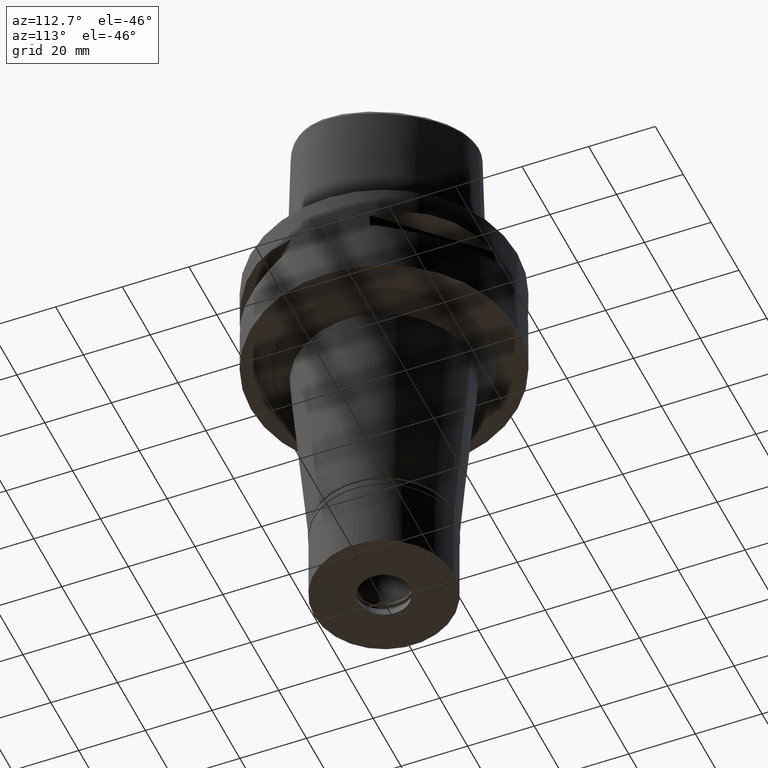
[diagram: clean part render]
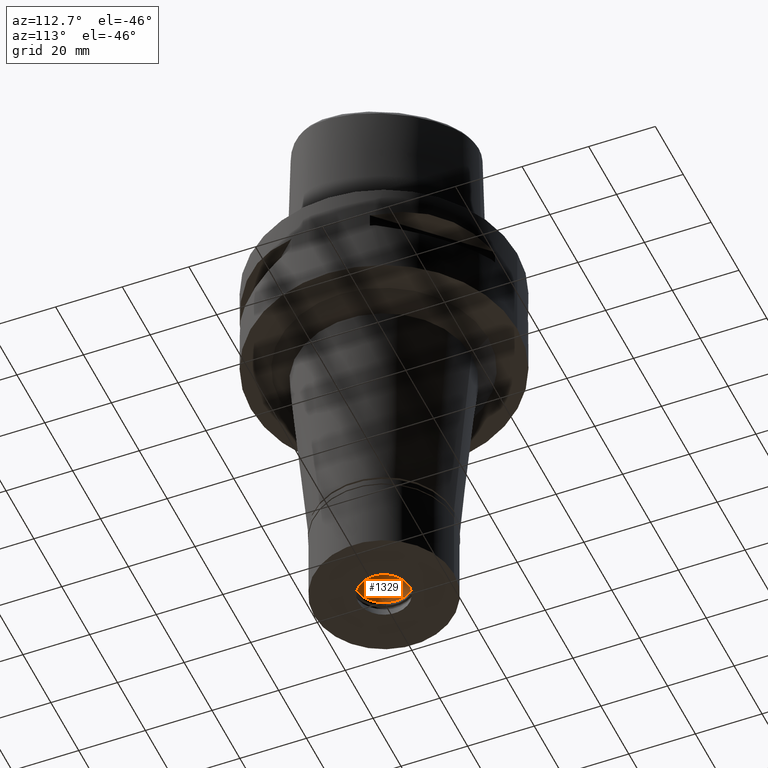
[diagram: same view with one face highlighted and labeled with its STEP entity id]
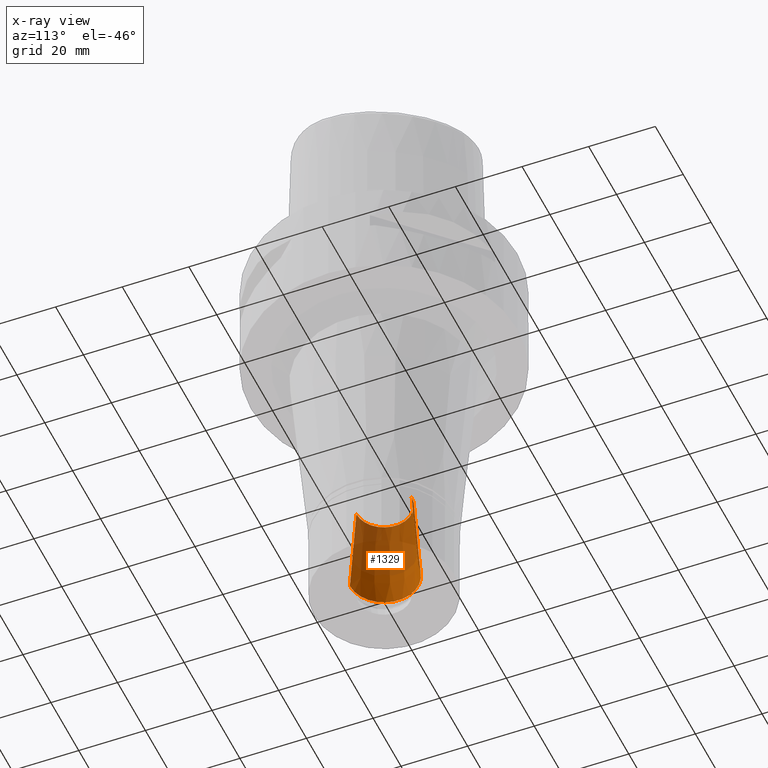
[diagram: x-ray of the same camera — body ghosted, the highlighted face saturated]
A machine part, auxiliary view. The second image highlights one B-rep face of the part: STEP entity #1329.
The next image is the same camera in x-ray: the body ghosted, the highlighted face saturated — about 62% of this face is hidden behind the body in this view.
In plain terms, the highlighted conical surface has half-angle 4 deg.
Its self-contained STEP definition (entity closure, byte-faithful):
#256 = DIRECTION ( 'NONE',  ( 0.0000000000000000000, -1.000000000000000000, 0.0000000000000000000 ) ) ;
#311 = CARTESIAN_POINT ( 'NONE',  ( 0.0000000000000000000, -10.25000000000000000, -112.5000000000000000 ) ) ;
#532 = EDGE_CURVE ( 'NONE', #706, #3344, #3885, .T. ) ;
#672 = VECTOR ( 'NONE', #2599, 1000.000000000000000 ) ;
#706 = VERTEX_POINT ( 'NONE', #1946 ) ;
#953 = ORIENTED_EDGE ( 'NONE', *, *, #4732, .F. ) ;
#1066 = CARTESIAN_POINT ( 'NONE',  ( 0.0000000000000000000, 10.25000000000000000, -112.5000000000000000 ) ) ;
#1329 = ADVANCED_FACE ( 'NONE', ( #1407 ), #3846, .F. ) ;
#1355 = CIRCLE ( 'NONE', #3853, 10.25000000000000000 ) ;
#1381 = CARTESIAN_POINT ( 'NONE',  ( 0.0000000000000000000, -8.300000000000000711, -84.61370079940999744 ) ) ;
#1407 = FACE_OUTER_BOUND ( 'NONE', #3811, .T. ) ;
#1456 = CARTESIAN_POINT ( 'NONE',  ( 0.0000000000000000000, 8.300000000000000711, -84.61370079940999744 ) ) ;
#1472 = ORIENTED_EDGE ( 'NONE', *, *, #3687, .T. ) ;
#1486 = CARTESIAN_POINT ( 'NONE',  ( 0.0000000000000000000, 0.0000000000000000000, -98.55685039969999650 ) ) ;
#1693 = ORIENTED_EDGE ( 'NONE', *, *, #532, .F. ) ;
#1946 = CARTESIAN_POINT ( 'NONE',  ( 0.0000000000000000000, -10.25000000000000000, -112.5000000000000000 ) ) ;
#2172 = CARTESIAN_POINT ( 'NONE',  ( 0.0000000000000000000, 10.25000000000000000, -112.5000000000000000 ) ) ;
#2277 = AXIS2_PLACEMENT_3D ( 'NONE', #1486, #2284, #3085 ) ;
#2284 = DIRECTION ( 'NONE',  ( 0.0000000000000000000, 0.0000000000000000000, -1.000000000000000000 ) ) ;
#2350 = CIRCLE ( 'NONE', #4333, 8.300000000000000711 ) ;
#2422 = EDGE_CURVE ( 'NONE', #706, #5011, #1355, .T. ) ;
#2599 = DIRECTION ( 'NONE',  ( 0.0000000000000000000, 0.06975647374412173585, 0.9975640502598245307 ) ) ;
#2644 = LINE ( 'NONE', #1066, #4738 ) ;
#2672 = DIRECTION ( 'NONE',  ( 0.0000000000000000000, 0.0000000000000000000, -1.000000000000000000 ) ) ;
#3085 = DIRECTION ( 'NONE',  ( 0.0000000000000000000, -1.000000000000000000, 0.0000000000000000000 ) ) ;
#3344 = VERTEX_POINT ( 'NONE', #1381 ) ;
#3622 = VERTEX_POINT ( 'NONE', #1456 ) ;
#3687 = EDGE_CURVE ( 'NONE', #5011, #3622, #2644, .T. ) ;
#3782 = DIRECTION ( 'NONE',  ( 0.0000000000000000000, 0.0000000000000000000, -1.000000000000000000 ) ) ;
#3811 = EDGE_LOOP ( 'NONE', ( #953, #1693, #4933, #1472 ) ) ;
#3846 = CONICAL_SURFACE ( 'NONE', #2277, 9.275000000000000355, 0.06981317007975955391 ) ;
#3853 = AXIS2_PLACEMENT_3D ( 'NONE', #4205, #2672, #256 ) ;
#3885 = LINE ( 'NONE', #311, #672 ) ;
#4154 = DIRECTION ( 'NONE',  ( 0.0000000000000000000, -1.000000000000000000, 0.0000000000000000000 ) ) ;
#4205 = CARTESIAN_POINT ( 'NONE',  ( 0.0000000000000000000, 0.0000000000000000000, -112.5000000000000000 ) ) ;
#4224 = DIRECTION ( 'NONE',  ( 0.0000000000000000000, -0.06975647374412173585, 0.9975640502598245307 ) ) ;
#4333 = AXIS2_PLACEMENT_3D ( 'NONE', #4520, #3782, #4154 ) ;
#4520 = CARTESIAN_POINT ( 'NONE',  ( 0.0000000000000000000, 0.0000000000000000000, -84.61370079940999744 ) ) ;
#4732 = EDGE_CURVE ( 'NONE', #3344, #3622, #2350, .T. ) ;
#4738 = VECTOR ( 'NONE', #4224, 1000.000000000000000 ) ;
#4933 = ORIENTED_EDGE ( 'NONE', *, *, #2422, .T. ) ;
#5011 = VERTEX_POINT ( 'NONE', #2172 ) ;